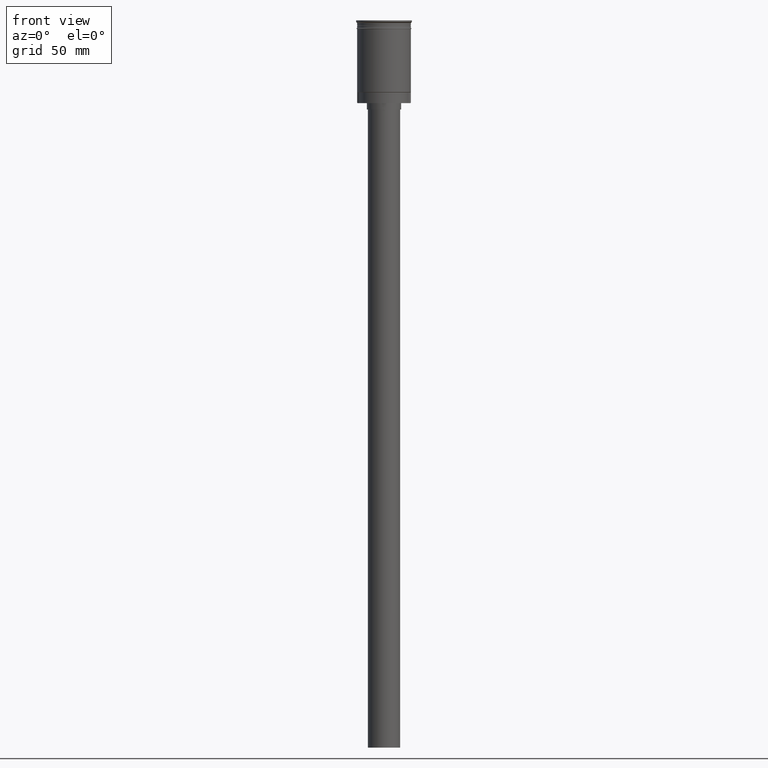
[diagram: clean part render]
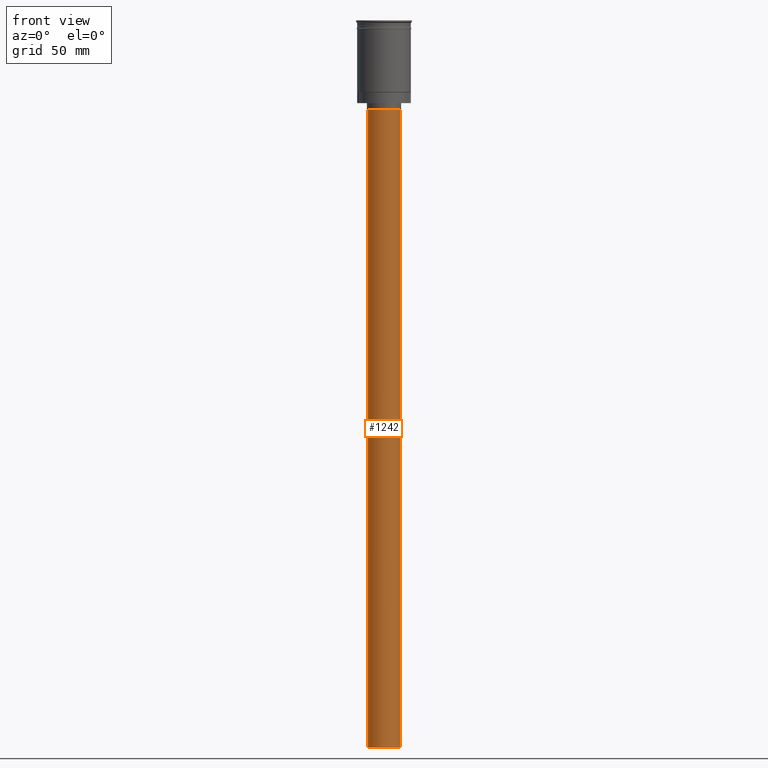
[diagram: same view with one face highlighted and labeled with its STEP entity id]
A machine part, front view. The second image highlights one B-rep face of the part: STEP entity #1242.
In plain terms, the highlighted cylindrical surface (edge-blend (fillet) strip) has radius 7.5 mm, axis along (-0, -0, 1).
Its self-contained STEP definition (entity closure, byte-faithful):
#30 = VERTEX_POINT ( 'NONE', #196 ) ;
#97 = CARTESIAN_POINT ( 'NONE',  ( -7.500000000000000000, 9.184850993605147944E-16, -41.50000000000000000 ) ) ;
#174 = VECTOR ( 'NONE', #706, 1000.000000000000000 ) ;
#187 = LINE ( 'NONE', #443, #1604 ) ;
#196 = CARTESIAN_POINT ( 'NONE',  ( 7.500000000000000000, 0.000000000000000000, -41.50000000000000000 ) ) ;
#202 = CARTESIAN_POINT ( 'NONE',  ( 7.500000000000000000, 0.000000000000000000, -338.4999999999999432 ) ) ;
#235 = AXIS2_PLACEMENT_3D ( 'NONE', #421, #648, #280 ) ;
#280 = DIRECTION ( 'NONE',  ( -1.000000000000000000, 0.000000000000000000, 0.000000000000000000 ) ) ;
#328 = ORIENTED_EDGE ( 'NONE', *, *, #1169, .F. ) ;
#367 = ORIENTED_EDGE ( 'NONE', *, *, #565, .T. ) ;
#421 = CARTESIAN_POINT ( 'NONE',  ( 0.000000000000000000, 0.000000000000000000, -41.50000000000000000 ) ) ;
#443 = CARTESIAN_POINT ( 'NONE',  ( -7.500000000000000000, 9.184850993605147944E-16, -338.4999999999999432 ) ) ;
#459 = VERTEX_POINT ( 'NONE', #975 ) ;
#461 = CARTESIAN_POINT ( 'NONE',  ( 0.000000000000000000, 0.000000000000000000, -338.4999999999999432 ) ) ;
#488 = LINE ( 'NONE', #1214, #174 ) ;
#565 = EDGE_CURVE ( 'NONE', #30, #753, #703, .T. ) ;
#634 = EDGE_CURVE ( 'NONE', #1248, #459, #1012, .T. ) ;
#648 = DIRECTION ( 'NONE',  ( 0.000000000000000000, 0.000000000000000000, -1.000000000000000000 ) ) ;
#661 = ORIENTED_EDGE ( 'NONE', *, *, #634, .F. ) ;
#667 = EDGE_LOOP ( 'NONE', ( #328, #661, #1207, #367 ) ) ;
#703 = CIRCLE ( 'NONE', #235, 7.500000000000000000 ) ;
#706 = DIRECTION ( 'NONE',  ( -0.000000000000000000, -0.000000000000000000, 1.000000000000000000 ) ) ;
#753 = VERTEX_POINT ( 'NONE', #97 ) ;
#819 = DIRECTION ( 'NONE',  ( -0.000000000000000000, -0.000000000000000000, 1.000000000000000000 ) ) ;
#919 = AXIS2_PLACEMENT_3D ( 'NONE', #461, #819, #1303 ) ;
#945 = DIRECTION ( 'NONE',  ( 0.000000000000000000, 0.000000000000000000, -1.000000000000000000 ) ) ;
#975 = CARTESIAN_POINT ( 'NONE',  ( -7.500000000000000000, 9.184850993605147944E-16, -338.4999999999999432 ) ) ;
#1012 = CIRCLE ( 'NONE', #1385, 7.500000000000000000 ) ;
#1061 = FACE_OUTER_BOUND ( 'NONE', #667, .T. ) ;
#1169 = EDGE_CURVE ( 'NONE', #459, #753, #187, .T. ) ;
#1207 = ORIENTED_EDGE ( 'NONE', *, *, #1573, .T. ) ;
#1214 = CARTESIAN_POINT ( 'NONE',  ( 7.500000000000000000, 0.000000000000000000, -338.4999999999999432 ) ) ;
#1242 = ADVANCED_FACE ( 'NONE', ( #1061 ), #1552, .T. ) ;
#1248 = VERTEX_POINT ( 'NONE', #202 ) ;
#1284 = CARTESIAN_POINT ( 'NONE',  ( 0.000000000000000000, 0.000000000000000000, -338.4999999999999432 ) ) ;
#1303 = DIRECTION ( 'NONE',  ( 1.000000000000000000, 0.000000000000000000, 0.000000000000000000 ) ) ;
#1385 = AXIS2_PLACEMENT_3D ( 'NONE', #1284, #945, #1532 ) ;
#1532 = DIRECTION ( 'NONE',  ( -1.000000000000000000, 0.000000000000000000, 0.000000000000000000 ) ) ;
#1552 = CYLINDRICAL_SURFACE ( 'NONE', #919, 7.500000000000000000 ) ;
#1560 = DIRECTION ( 'NONE',  ( -0.000000000000000000, -0.000000000000000000, 1.000000000000000000 ) ) ;
#1573 = EDGE_CURVE ( 'NONE', #1248, #30, #488, .T. ) ;
#1604 = VECTOR ( 'NONE', #1560, 1000.000000000000000 ) ;